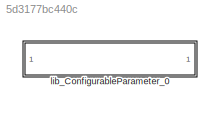
MODEL slx_5d3177bc440c
KIND library
CONFIG AbsTol = auto
CONFIG EnableMultiTasking = off
CONFIG FixedStep = auto
CONFIG MaxStep = auto
CONFIG MinStep = auto
CONFIG RelTol = 1e-3
CONFIG SampleTimeConstraint = Unconstrained
CONFIG SolverName = VariableStepAuto
CONFIG StartTime = 0.0
CONFIG StopTime = 10.0
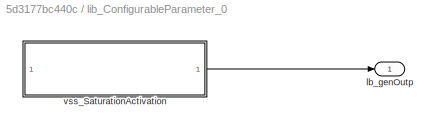
BLOCK [SubSystem] lib_ConfigurableParameter_0
BLOCK [Outport] lib_ConfigurableParameter_0/lb_genOutp
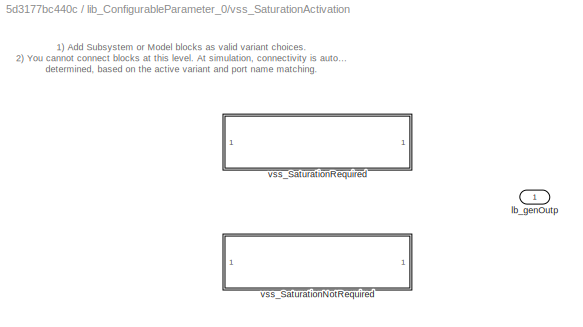
BLOCK [SubSystem] lib_ConfigurableParameter_0/vss_SaturationActivation
  LabelModeActiveChoice = lb_parSatReqLbl
  Variant = on
  VariantControlMode = label
BLOCK [Outport] lib_ConfigurableParameter_0/vss_SaturationActivation/lb_genOutp
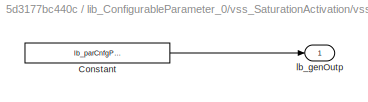
BLOCK [SubSystem] lib_ConfigurableParameter_0/vss_SaturationActivation/vss_SaturationNotRequired
  VariantControl = lb_parSatNotReqLbl
BLOCK [Constant] lib_ConfigurableParameter_0/vss_SaturationActivation/vss_SaturationNotRequired/Constant
  Value = lb_parCnfgPar
BLOCK [Outport] lib_ConfigurableParameter_0/vss_SaturationActivation/vss_SaturationNotRequired/lb_genOutp
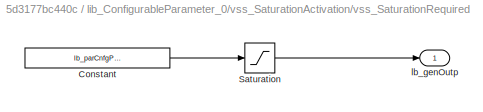
BLOCK [SubSystem] lib_ConfigurableParameter_0/vss_SaturationActivation/vss_SaturationRequired
  VariantControl = lb_parSatReqLbl
BLOCK [Constant] lib_ConfigurableParameter_0/vss_SaturationActivation/vss_SaturationRequired/Constant
  Value = lb_parCnfgPar
BLOCK [Saturate] lib_ConfigurableParameter_0/vss_SaturationActivation/vss_SaturationRequired/Saturation
  LowerLimit = lb_parLowLim
  UpperLimit = lb_parUpLim
BLOCK [Outport] lib_ConfigurableParameter_0/vss_SaturationActivation/vss_SaturationRequired/lb_genOutp
ANNOTATION lib_ConfigurableParameter_0/vss_SaturationActivation: 1) Add Subsystem or Model blocks as valid variant choices. 2) You cannot connect blocks at this level. At simulation, connectivity is automatically determined, based on the active variant and port name matching.
LINE lib_ConfigurableParameter_0/vss_SaturationActivation/vss_SaturationNotRequired/Constant:1 -> lib_ConfigurableParameter_0/vss_SaturationActivation/vss_SaturationNotRequired/lb_genOutp:1
LINE lib_ConfigurableParameter_0/vss_SaturationActivation/vss_SaturationRequired/Constant:1 -> lib_ConfigurableParameter_0/vss_SaturationActivation/vss_SaturationRequired/Saturation:1
LINE lib_ConfigurableParameter_0/vss_SaturationActivation/vss_SaturationRequired/Saturation:1 -> lib_ConfigurableParameter_0/vss_SaturationActivation/vss_SaturationRequired/lb_genOutp:1
LINE lib_ConfigurableParameter_0/vss_SaturationActivation:1 -> lib_ConfigurableParameter_0/lb_genOutp:1
